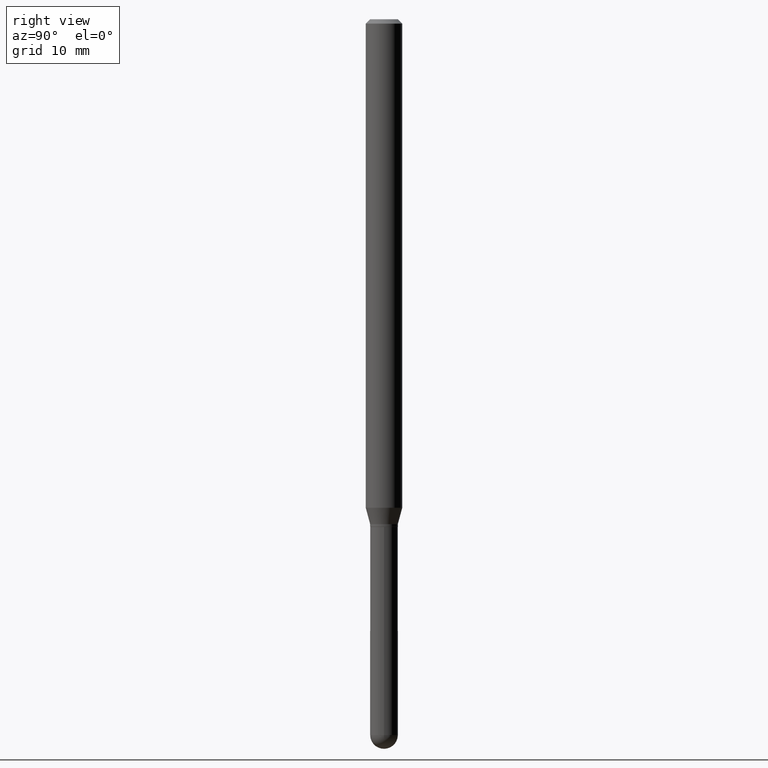
[diagram: clean part render]
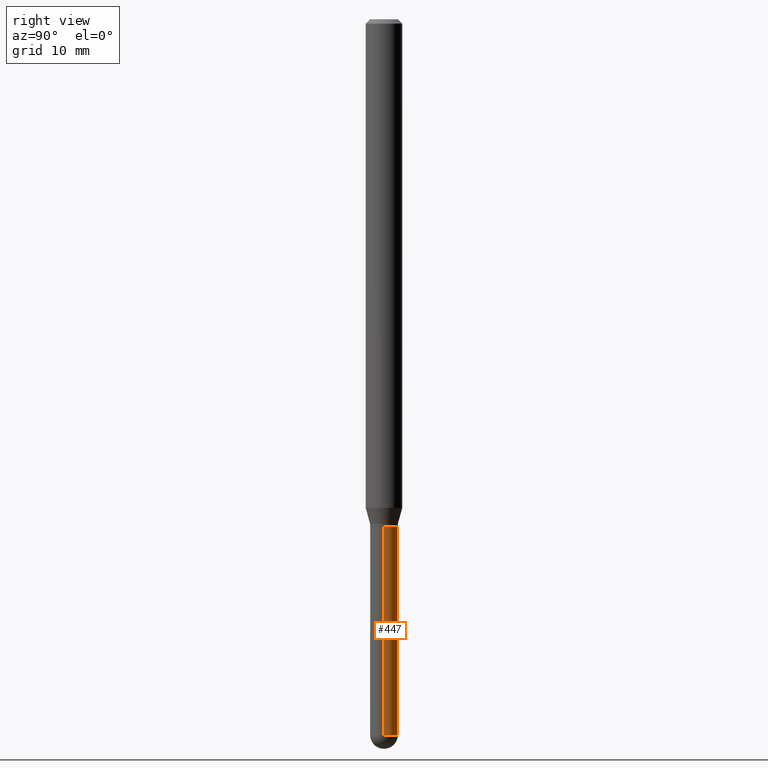
[diagram: same view with one face highlighted and labeled with its STEP entity id]
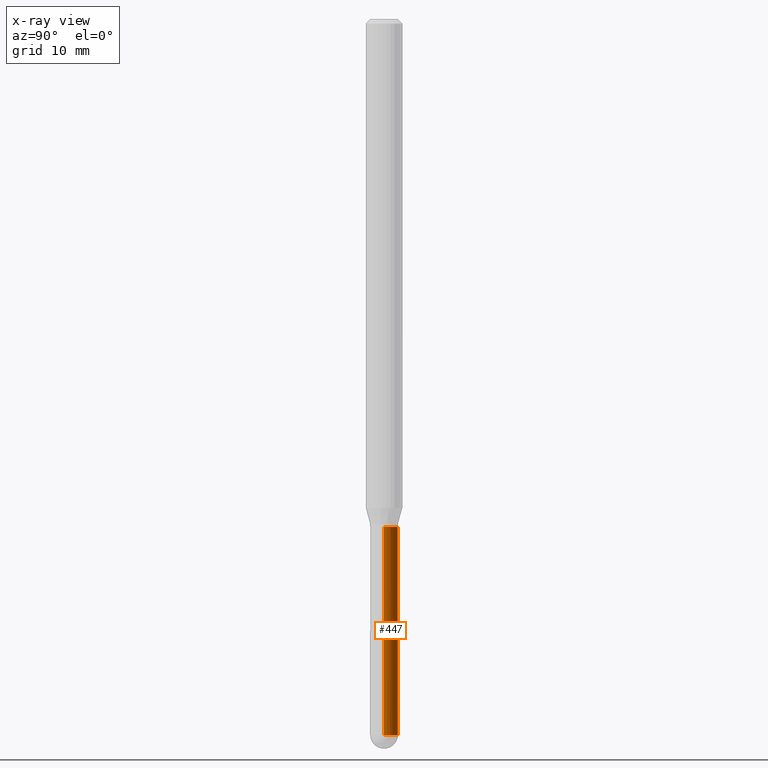
[diagram: x-ray of the same camera — body ghosted, the highlighted face saturated]
A machine part, right view. The second image highlights one B-rep face of the part: STEP entity #447.
The next image is the same camera in x-ray: the body ghosted, the highlighted face saturated — about 0% of this face is hidden behind the body in this view.
In plain terms, the highlighted cylindrical surface (edge-blend (fillet) strip) has radius 1.2065 mm, axis along (-0, 0, 1).
Its self-contained STEP definition (entity closure, byte-faithful):
#23 = CARTESIAN_POINT ( 'NONE',  ( -0.04750000000000000749, 3.375077994860476415E-16, -2.336494167871080260E-30 ) ) ;
#25 = DIRECTION ( 'NONE',  ( -2.445468806185136877E-29, 3.491481338843145188E-15, 1.000000000000000000 ) ) ;
#31 = ORIENTED_EDGE ( 'NONE', *, *, #435, .T. ) ;
#36 = EDGE_CURVE ( 'NONE', #388, #39, #363, .T. ) ;
#38 = DIRECTION ( 'NONE',  ( -2.445468806185136597E-29, 3.491481338843145583E-15, 1.000000000000000000 ) ) ;
#39 = VERTEX_POINT ( 'NONE', #369 ) ;
#42 = AXIS2_PLACEMENT_3D ( 'NONE', #302, #377, #496 ) ;
#58 = VERTEX_POINT ( 'NONE', #138 ) ;
#106 = LINE ( 'NONE', #23, #171 ) ;
#113 = CARTESIAN_POINT ( 'NONE',  ( 0.04750000000000000749, -3.316907271900977082E-16, 2.316183968503069432E-30 ) ) ;
#116 = DIRECTION ( 'NONE',  ( 1.000000000000000000, -6.982962677686280910E-15, 0.000000000000000000 ) ) ;
#133 = CIRCLE ( 'NONE', #423, 0.04750000000000000749 ) ;
#138 = CARTESIAN_POINT ( 'NONE',  ( -0.04749999999999999362, -6.981509957063897703E-15, -1.740000000000000213 ) ) ;
#165 = CARTESIAN_POINT ( 'NONE',  ( 5.997512247169047773E-29, -8.562857983512815004E-15, -2.452500000000000124 ) ) ;
#168 = DIRECTION ( 'NONE',  ( -2.445468806185136597E-29, 3.491481338843145583E-15, 1.000000000000000000 ) ) ;
#171 = VECTOR ( 'NONE', #25, 39.37007874015748143 ) ;
#199 = AXIS2_PLACEMENT_3D ( 'NONE', #308, #318, #477 ) ;
#238 = CYLINDRICAL_SURFACE ( 'NONE', #199, 0.04750000000000000749 ) ;
#245 = ORIENTED_EDGE ( 'NONE', *, *, #421, .F. ) ;
#273 = DIRECTION ( 'NONE',  ( -2.445468806185136877E-29, 3.491481338843145188E-15, 1.000000000000000000 ) ) ;
#278 = CARTESIAN_POINT ( 'NONE',  ( 0.04749999999999999362, -6.406868256777172111E-15, -1.740000000000000213 ) ) ;
#283 = ORIENTED_EDGE ( 'NONE', *, *, #328, .T. ) ;
#302 = CARTESIAN_POINT ( 'NONE',  ( 4.255115722762138620E-29, -6.075177529587074600E-15, -1.740000000000000213 ) ) ;
#308 = CARTESIAN_POINT ( 'NONE',  ( 0.000000000000000000, 0.000000000000000000, 0.000000000000000000 ) ) ;
#309 = ORIENTED_EDGE ( 'NONE', *, *, #345, .F. ) ;
#310 = CARTESIAN_POINT ( 'NONE',  ( 3.316907271901575630E-16, 0.04749999999999143102, -2.452500000000000568 ) ) ;
#315 = FACE_OUTER_BOUND ( 'NONE', #445, .T. ) ;
#318 = DIRECTION ( 'NONE',  ( -2.445468806185136597E-29, 3.491481338843145583E-15, 1.000000000000000000 ) ) ;
#328 = EDGE_CURVE ( 'NONE', #39, #58, #106, .T. ) ;
#335 = DIRECTION ( 'NONE',  ( 1.000000000000000000, -6.982962677686280910E-15, 0.000000000000000000 ) ) ;
#345 = EDGE_CURVE ( 'NONE', #440, #58, #456, .T. ) ;
#354 = VECTOR ( 'NONE', #273, 39.37007874015748143 ) ;
#360 = CARTESIAN_POINT ( 'NONE',  ( 5.997512247169047773E-29, -8.562857983512815004E-15, -2.452500000000000124 ) ) ;
#363 = CIRCLE ( 'NONE', #431, 0.04750000000000000749 ) ;
#369 = CARTESIAN_POINT ( 'NONE',  ( -0.04750000000000000749, -6.981509957063897703E-15, -2.452500000000000124 ) ) ;
#377 = DIRECTION ( 'NONE',  ( -2.445468806185136597E-29, 3.491481338843145583E-15, 1.000000000000000000 ) ) ;
#388 = VERTEX_POINT ( 'NONE', #310 ) ;
#394 = LINE ( 'NONE', #113, #354 ) ;
#395 = VERTEX_POINT ( 'NONE', #511 ) ;
#421 = EDGE_CURVE ( 'NONE', #395, #440, #394, .T. ) ;
#423 = AXIS2_PLACEMENT_3D ( 'NONE', #165, #38, #116 ) ;
#431 = AXIS2_PLACEMENT_3D ( 'NONE', #360, #168, #335 ) ;
#435 = EDGE_CURVE ( 'NONE', #395, #388, #133, .T. ) ;
#436 = ORIENTED_EDGE ( 'NONE', *, *, #36, .T. ) ;
#440 = VERTEX_POINT ( 'NONE', #278 ) ;
#445 = EDGE_LOOP ( 'NONE', ( #436, #283, #309, #245, #31 ) ) ;
#447 = ADVANCED_FACE ( 'NONE', ( #315 ), #238, .T. ) ;
#456 = CIRCLE ( 'NONE', #42, 0.04749999999999999362 ) ;
#477 = DIRECTION ( 'NONE',  ( 1.000000000000000000, -6.982962677686266711E-15, 4.876176775795934672E-29 ) ) ;
#496 = DIRECTION ( 'NONE',  ( 1.000000000000000000, -6.982962677686261977E-15, 0.000000000000000000 ) ) ;
#511 = CARTESIAN_POINT ( 'NONE',  ( 0.04750000000000000749, -7.650708483740042707E-15, -2.452500000000000124 ) ) ;